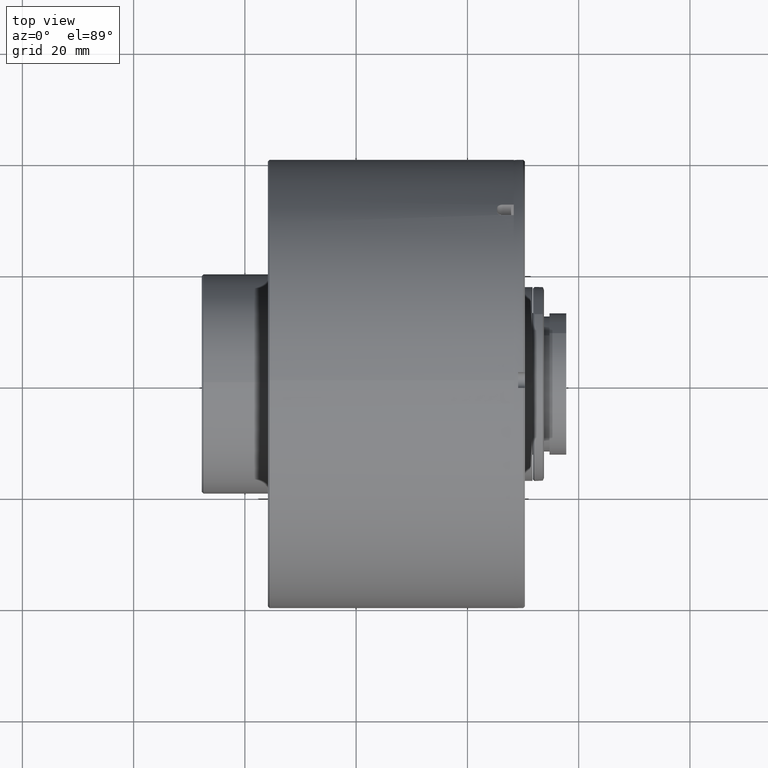
[diagram: clean part render]
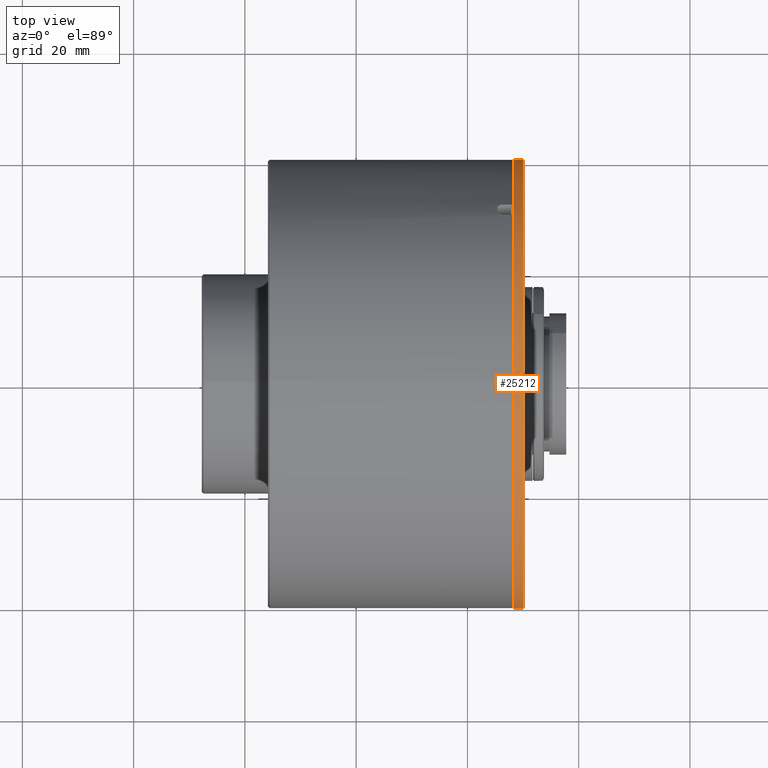
[diagram: same view with one face highlighted and labeled with its STEP entity id]
A machine part, top view. The second image highlights one B-rep face of the part: STEP entity #25212.
In plain terms, the highlighted cylindrical surface (bore or boss wall) has radius 40.3 mm, axis along (-1, -0, -0).
Its self-contained STEP definition (entity closure, byte-faithful):
#218 = ORIENTED_EDGE ( 'NONE', *, *, #18052, .F. ) ;
#507 = EDGE_LOOP ( 'NONE', ( #29570 ) ) ;
#1388 = VERTEX_POINT ( 'NONE', #10974 ) ;
#1596 = DIRECTION ( 'NONE',  ( -1.000000000000000000, -0.000000000000000000, -0.000000000000000000 ) ) ;
#2324 = DIRECTION ( 'NONE',  ( -1.000000000000000000, -0.000000000000000000, -0.000000000000000000 ) ) ;
#2413 = AXIS2_PLACEMENT_3D ( 'NONE', #15155, #11499, #45043 ) ;
#2557 = CARTESIAN_POINT ( 'NONE',  ( 229.1208642838984417, -40.27567504089834927, -1.400000000000113376 ) ) ;
#2802 = CIRCLE ( 'NONE', #29995, 40.30000000000044480 ) ;
#2968 = VERTEX_POINT ( 'NONE', #6370 ) ;
#3175 = EDGE_CURVE ( 'NONE', #31226, #35905, #21948, .T. ) ;
#3246 = AXIS2_PLACEMENT_3D ( 'NONE', #42919, #2324, #9373 ) ;
#3417 = LINE ( 'NONE', #7060, #38765 ) ;
#3432 = VERTEX_POINT ( 'NONE', #32256 ) ;
#3852 = EDGE_CURVE ( 'NONE', #3432, #42283, #13489, .T. ) ;
#4702 = DIRECTION ( 'NONE',  ( 1.000000000000000000, 0.000000000000000000, 0.000000000000000000 ) ) ;
#4797 = CIRCLE ( 'NONE', #3246, 40.30000000000044480 ) ;
#5526 = VECTOR ( 'NONE', #1596, 1000.000000000000000 ) ;
#5902 = CARTESIAN_POINT ( 'NONE',  ( 230.0208642838981064, 40.27567504089834927, -1.400000000000113376 ) ) ;
#6370 = CARTESIAN_POINT ( 'NONE',  ( 230.0208642838981064, 1.399999999999845812, -40.27567504089839900 ) ) ;
#7039 = EDGE_CURVE ( 'NONE', #30858, #34460, #18677, .T. ) ;
#7060 = CARTESIAN_POINT ( 'NONE',  ( 229.1208642838984417, 40.27567504089834927, 1.399999999999860911 ) ) ;
#7174 = AXIS2_PLACEMENT_3D ( 'NONE', #41935, #38536, #8632 ) ;
#7224 = CARTESIAN_POINT ( 'NONE',  ( 160.5400541067230051, 1.399999999999845812, -40.27567504089839900 ) ) ;
#8124 = ORIENTED_EDGE ( 'NONE', *, *, #32924, .T. ) ;
#8154 = ORIENTED_EDGE ( 'NONE', *, *, #37380, .F. ) ;
#8189 = EDGE_LOOP ( 'NONE', ( #36863, #27889, #17441, #46837, #40955, #8124, #44617, #218, #14976, #26161, #35625, #44568, #24192, #40884, #34168, #8154 ) ) ;
#8343 = CARTESIAN_POINT ( 'NONE',  ( 230.0208642838981064, 0.000000000000000000, -1.261029084410195117E-13 ) ) ;
#8632 = DIRECTION ( 'NONE',  ( 0.000000000000000000, 0.000000000000000000, 1.000000000000000000 ) ) ;
#9108 = LINE ( 'NONE', #38794, #5526 ) ;
#9373 = DIRECTION ( 'NONE',  ( 0.000000000000000000, 0.000000000000000000, 1.000000000000000000 ) ) ;
#10974 = CARTESIAN_POINT ( 'NONE',  ( 229.1208642838984417, 40.27567504089834927, -1.400000000000113376 ) ) ;
#10994 = CARTESIAN_POINT ( 'NONE',  ( 229.1208642838984417, -1.399999999999623768, 40.27567504089815742 ) ) ;
#11499 = DIRECTION ( 'NONE',  ( 1.000000000000000000, 0.000000000000000000, 0.000000000000000000 ) ) ;
#11605 = CIRCLE ( 'NONE', #44230, 40.30000000000044480 ) ;
#12025 = CARTESIAN_POINT ( 'NONE',  ( 230.0208642838981064, 1.400000000000511946, 40.27567504089814321 ) ) ;
#12345 = CARTESIAN_POINT ( 'NONE',  ( 229.1208642838984417, 1.399999999999845812, -40.27567504089839900 ) ) ;
#12743 = CARTESIAN_POINT ( 'NONE',  ( 228.3208642838983167, 0.000000000000000000, 40.30000000000032401 ) ) ;
#13145 = DIRECTION ( 'NONE',  ( 0.000000000000000000, 0.000000000000000000, 1.000000000000000000 ) ) ;
#13489 = LINE ( 'NONE', #2557, #35865 ) ;
#13516 = VERTEX_POINT ( 'NONE', #15377 ) ;
#14352 = VERTEX_POINT ( 'NONE', #35074 ) ;
#14612 = DIRECTION ( 'NONE',  ( 0.000000000000000000, 0.000000000000000000, 1.000000000000000000 ) ) ;
#14948 = LINE ( 'NONE', #22250, #24374 ) ;
#14976 = ORIENTED_EDGE ( 'NONE', *, *, #16629, .T. ) ;
#15074 = CYLINDRICAL_SURFACE ( 'NONE', #37170, 40.30000000000044480 ) ;
#15155 = CARTESIAN_POINT ( 'NONE',  ( 230.0208642838981064, 0.000000000000000000, -1.261029084410195117E-13 ) ) ;
#15377 = CARTESIAN_POINT ( 'NONE',  ( 229.1208642838984417, 40.27567504089834927, 1.399999999999860911 ) ) ;
#16570 = CARTESIAN_POINT ( 'NONE',  ( 229.1208642838984417, 40.27567504089834927, -1.400000000000113376 ) ) ;
#16629 = EDGE_CURVE ( 'NONE', #20319, #42563, #9108, .T. ) ;
#17137 = AXIS2_PLACEMENT_3D ( 'NONE', #39366, #32297, #21376 ) ;
#17441 = ORIENTED_EDGE ( 'NONE', *, *, #41652, .T. ) ;
#17656 = CARTESIAN_POINT ( 'NONE',  ( 228.3208642838983167, 0.000000000000000000, -1.261029084410195117E-13 ) ) ;
#17874 = DIRECTION ( 'NONE',  ( -1.000000000000000000, 0.000000000000000000, -0.000000000000000000 ) ) ;
#17881 = CARTESIAN_POINT ( 'NONE',  ( 230.0208642838981064, -1.399999999999623768, 40.27567504089815742 ) ) ;
#18052 = EDGE_CURVE ( 'NONE', #20319, #41731, #38157, .T. ) ;
#18492 = DIRECTION ( 'NONE',  ( 0.000000000000000000, 0.000000000000000000, 1.000000000000000000 ) ) ;
#18677 = CIRCLE ( 'NONE', #19472, 40.30000000000044480 ) ;
#19472 = AXIS2_PLACEMENT_3D ( 'NONE', #28442, #24564, #13145 ) ;
#19585 = VERTEX_POINT ( 'NONE', #5902 ) ;
#19628 = DIRECTION ( 'NONE',  ( -1.000000000000000000, -0.000000000000000000, -0.000000000000000000 ) ) ;
#19988 = VECTOR ( 'NONE', #41491, 1000.000000000000000 ) ;
#20213 = VERTEX_POINT ( 'NONE', #35878 ) ;
#20222 = CARTESIAN_POINT ( 'NONE',  ( 230.0208642838981064, 40.27567504089834927, 1.399999999999860911 ) ) ;
#20319 = VERTEX_POINT ( 'NONE', #17881 ) ;
#20381 = EDGE_CURVE ( 'NONE', #20213, #41731, #14948, .T. ) ;
#20457 = LINE ( 'NONE', #16570, #45338 ) ;
#20979 = EDGE_CURVE ( 'NONE', #1388, #19585, #20457, .T. ) ;
#21006 = VERTEX_POINT ( 'NONE', #20222 ) ;
#21022 = CIRCLE ( 'NONE', #17137, 40.30000000000046612 ) ;
#21376 = DIRECTION ( 'NONE',  ( 0.000000000000000000, 0.000000000000000000, 1.000000000000000000 ) ) ;
#21948 = LINE ( 'NONE', #32633, #42039 ) ;
#22250 = CARTESIAN_POINT ( 'NONE',  ( 229.1208642838984417, -40.27567504089834927, 1.399999999999860911 ) ) ;
#22398 = DIRECTION ( 'NONE',  ( -1.000000000000000000, -0.000000000000000000, -0.000000000000000000 ) ) ;
#22929 = CARTESIAN_POINT ( 'NONE',  ( 229.1208642838984417, -1.400000000000289901, -40.27567504089839190 ) ) ;
#24192 = ORIENTED_EDGE ( 'NONE', *, *, #25284, .T. ) ;
#24374 = VECTOR ( 'NONE', #41433, 1000.000000000000000 ) ;
#24430 = EDGE_CURVE ( 'NONE', #39723, #39723, #29896, .T. ) ;
#24564 = DIRECTION ( 'NONE',  ( -1.000000000000000000, -0.000000000000000000, -0.000000000000000000 ) ) ;
#25212 = ADVANCED_FACE ( 'NONE', ( #43994, #29184 ), #15074, .T. ) ;
#25284 = EDGE_CURVE ( 'NONE', #21006, #13516, #3417, .T. ) ;
#26095 = VECTOR ( 'NONE', #43565, 1000.000000000000000 ) ;
#26144 = DIRECTION ( 'NONE',  ( 0.000000000000000000, 0.000000000000000000, 1.000000000000000000 ) ) ;
#26161 = ORIENTED_EDGE ( 'NONE', *, *, #34900, .T. ) ;
#26633 = CARTESIAN_POINT ( 'NONE',  ( 230.0208642838981064, 0.000000000000000000, -1.261029084410195117E-13 ) ) ;
#26677 = LINE ( 'NONE', #7224, #19988 ) ;
#26828 = CARTESIAN_POINT ( 'NONE',  ( 229.1208642838984417, 1.400000000000511946, 40.27567504089812900 ) ) ;
#27889 = ORIENTED_EDGE ( 'NONE', *, *, #7039, .T. ) ;
#28442 = CARTESIAN_POINT ( 'NONE',  ( 229.1208642838984417, 0.000000000000000000, -1.261029084410195117E-13 ) ) ;
#28498 = LINE ( 'NONE', #46726, #26095 ) ;
#29184 = FACE_OUTER_BOUND ( 'NONE', #507, .T. ) ;
#29444 = CARTESIAN_POINT ( 'NONE',  ( 229.1208642838984417, 0.000000000000000000, -1.261029084410195117E-13 ) ) ;
#29570 = ORIENTED_EDGE ( 'NONE', *, *, #24430, .T. ) ;
#29712 = CIRCLE ( 'NONE', #7174, 40.30000000000044480 ) ;
#29896 = CIRCLE ( 'NONE', #37671, 40.30000000000044480 ) ;
#29995 = AXIS2_PLACEMENT_3D ( 'NONE', #29444, #22398, #14612 ) ;
#30858 = VERTEX_POINT ( 'NONE', #12345 ) ;
#31226 = VERTEX_POINT ( 'NONE', #26828 ) ;
#32256 = CARTESIAN_POINT ( 'NONE',  ( 230.0208642838981064, -40.27567504089834927, -1.400000000000113376 ) ) ;
#32297 = DIRECTION ( 'NONE',  ( 1.000000000000000000, 0.000000000000000000, 0.000000000000000000 ) ) ;
#32633 = CARTESIAN_POINT ( 'NONE',  ( 229.1208642838984417, 1.400000000000511946, 40.27567504089813610 ) ) ;
#32924 = EDGE_CURVE ( 'NONE', #42283, #20213, #4797, .T. ) ;
#33665 = CARTESIAN_POINT ( 'NONE',  ( 229.1208642838984417, -40.27567504089834927, -1.400000000000113376 ) ) ;
#34168 = ORIENTED_EDGE ( 'NONE', *, *, #20979, .T. ) ;
#34460 = VERTEX_POINT ( 'NONE', #22929 ) ;
#34900 = EDGE_CURVE ( 'NONE', #42563, #31226, #2802, .T. ) ;
#35074 = CARTESIAN_POINT ( 'NONE',  ( 230.0208642838981064, -1.400000000000289901, -40.27567504089840611 ) ) ;
#35281 = DIRECTION ( 'NONE',  ( 1.000000000000000000, -0.000000000000000000, 0.000000000000000000 ) ) ;
#35625 = ORIENTED_EDGE ( 'NONE', *, *, #3175, .T. ) ;
#35865 = VECTOR ( 'NONE', #17874, 1000.000000000000000 ) ;
#35878 = CARTESIAN_POINT ( 'NONE',  ( 229.1208642838984417, -40.27567504089834927, 1.399999999999860911 ) ) ;
#35905 = VERTEX_POINT ( 'NONE', #12025 ) ;
#36129 = DIRECTION ( 'NONE',  ( 1.000000000000000000, 0.000000000000000000, 0.000000000000000000 ) ) ;
#36863 = ORIENTED_EDGE ( 'NONE', *, *, #43026, .T. ) ;
#37170 = AXIS2_PLACEMENT_3D ( 'NONE', #41088, #38111, #18492 ) ;
#37380 = EDGE_CURVE ( 'NONE', #2968, #19585, #11605, .T. ) ;
#37671 = AXIS2_PLACEMENT_3D ( 'NONE', #17656, #36129, #47312 ) ;
#37784 = DIRECTION ( 'NONE',  ( 0.000000000000000000, 0.000000000000000000, 1.000000000000000000 ) ) ;
#38111 = DIRECTION ( 'NONE',  ( -1.000000000000000000, -0.000000000000000000, -0.000000000000000000 ) ) ;
#38144 = CIRCLE ( 'NONE', #2413, 40.30000000000046612 ) ;
#38157 = CIRCLE ( 'NONE', #44325, 40.30000000000044480 ) ;
#38169 = EDGE_CURVE ( 'NONE', #3432, #14352, #21022, .T. ) ;
#38536 = DIRECTION ( 'NONE',  ( -1.000000000000000000, -0.000000000000000000, -0.000000000000000000 ) ) ;
#38585 = EDGE_CURVE ( 'NONE', #21006, #35905, #38144, .T. ) ;
#38765 = VECTOR ( 'NONE', #19628, 1000.000000000000000 ) ;
#38794 = CARTESIAN_POINT ( 'NONE',  ( 160.5400541067230051, -1.399999999999623768, 40.27567504089815742 ) ) ;
#39366 = CARTESIAN_POINT ( 'NONE',  ( 230.0208642838981064, 0.000000000000000000, -1.261029084410195117E-13 ) ) ;
#39723 = VERTEX_POINT ( 'NONE', #12743 ) ;
#40884 = ORIENTED_EDGE ( 'NONE', *, *, #45970, .T. ) ;
#40955 = ORIENTED_EDGE ( 'NONE', *, *, #3852, .T. ) ;
#41088 = CARTESIAN_POINT ( 'NONE',  ( 160.5400541067230051, 0.000000000000000000, -1.261029084410195117E-13 ) ) ;
#41433 = DIRECTION ( 'NONE',  ( 1.000000000000000000, 0.000000000000000000, -0.000000000000000000 ) ) ;
#41451 = DIRECTION ( 'NONE',  ( 1.000000000000000000, 0.000000000000000000, 0.000000000000000000 ) ) ;
#41491 = DIRECTION ( 'NONE',  ( -1.000000000000000000, -0.000000000000000000, -0.000000000000000000 ) ) ;
#41652 = EDGE_CURVE ( 'NONE', #34460, #14352, #28498, .T. ) ;
#41731 = VERTEX_POINT ( 'NONE', #46242 ) ;
#41935 = CARTESIAN_POINT ( 'NONE',  ( 229.1208642838984417, 0.000000000000000000, -1.261029084410195117E-13 ) ) ;
#42039 = VECTOR ( 'NONE', #47460, 1000.000000000000000 ) ;
#42283 = VERTEX_POINT ( 'NONE', #33665 ) ;
#42563 = VERTEX_POINT ( 'NONE', #10994 ) ;
#42919 = CARTESIAN_POINT ( 'NONE',  ( 229.1208642838984417, 0.000000000000000000, -1.261029084410195117E-13 ) ) ;
#43026 = EDGE_CURVE ( 'NONE', #2968, #30858, #26677, .T. ) ;
#43565 = DIRECTION ( 'NONE',  ( 1.000000000000000000, 0.000000000000000000, 0.000000000000000000 ) ) ;
#43994 = FACE_OUTER_BOUND ( 'NONE', #8189, .T. ) ;
#44230 = AXIS2_PLACEMENT_3D ( 'NONE', #26633, #41451, #26144 ) ;
#44325 = AXIS2_PLACEMENT_3D ( 'NONE', #8343, #4702, #37784 ) ;
#44568 = ORIENTED_EDGE ( 'NONE', *, *, #38585, .F. ) ;
#44617 = ORIENTED_EDGE ( 'NONE', *, *, #20381, .T. ) ;
#45043 = DIRECTION ( 'NONE',  ( 0.000000000000000000, -3.552713678800500929E-15, 1.000000000000000000 ) ) ;
#45338 = VECTOR ( 'NONE', #35281, 1000.000000000000000 ) ;
#45970 = EDGE_CURVE ( 'NONE', #13516, #1388, #29712, .T. ) ;
#46242 = CARTESIAN_POINT ( 'NONE',  ( 230.0208642838981064, -40.27567504089834927, 1.399999999999860911 ) ) ;
#46726 = CARTESIAN_POINT ( 'NONE',  ( 229.1208642838984417, -1.400000000000289901, -40.27567504089839900 ) ) ;
#46837 = ORIENTED_EDGE ( 'NONE', *, *, #38169, .F. ) ;
#47312 = DIRECTION ( 'NONE',  ( 0.000000000000000000, 0.000000000000000000, 1.000000000000000000 ) ) ;
#47460 = DIRECTION ( 'NONE',  ( 1.000000000000000000, -0.000000000000000000, 0.000000000000000000 ) ) ;